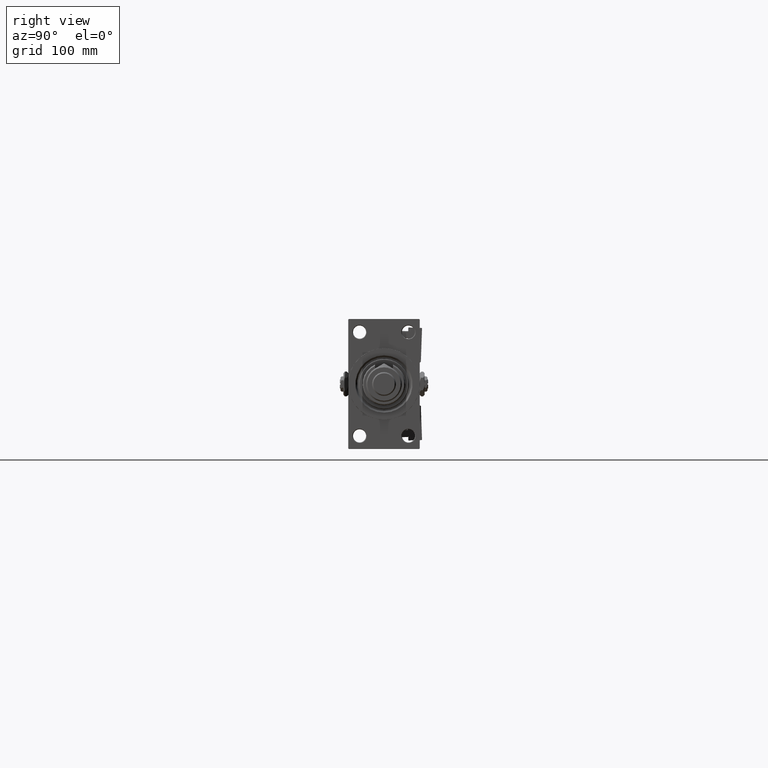
[diagram: clean part render]
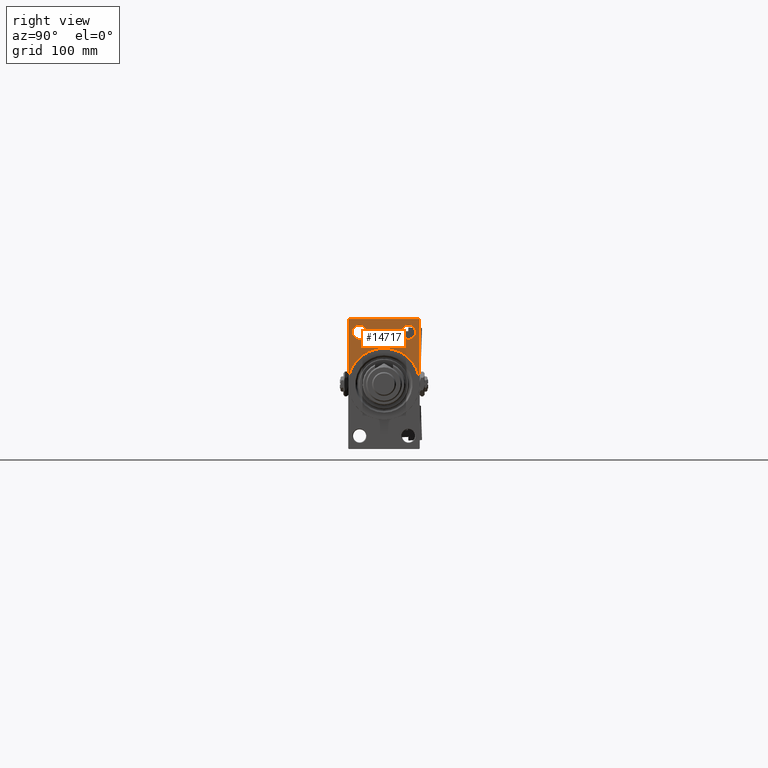
[diagram: same view with one face highlighted and labeled with its STEP entity id]
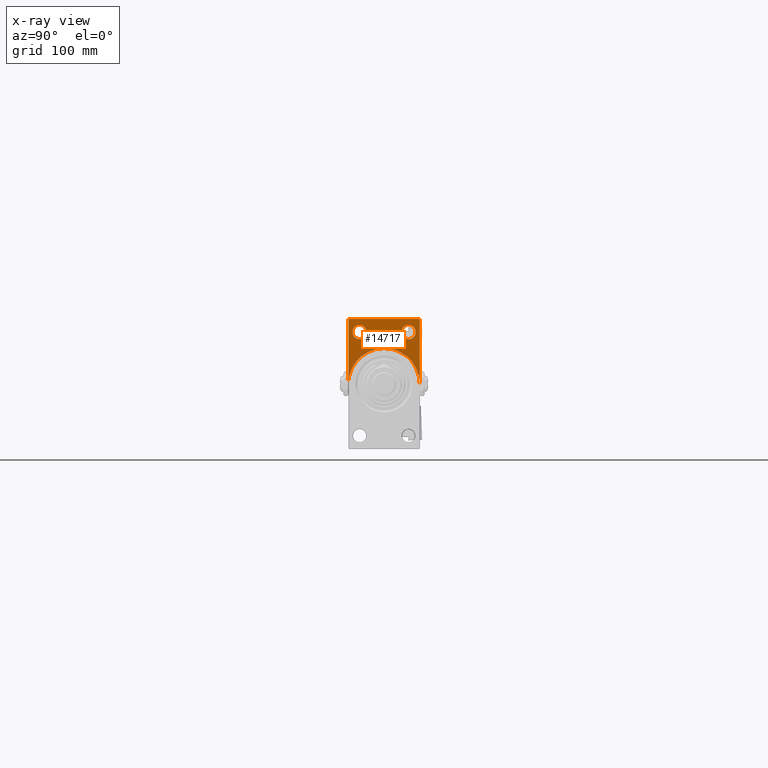
[diagram: x-ray of the same camera — body ghosted, the highlighted face saturated]
A machine part, right view. The second image highlights one B-rep face of the part: STEP entity #14717.
The next image is the same camera in x-ray: the body ghosted, the highlighted face saturated — about 0% of this face is hidden behind the body in this view.
In plain terms, the highlighted planar face has unit normal (-1, 0, 0).
Its self-contained STEP definition (entity closure, byte-faithful):
#389 = AXIS2_PLACEMENT_3D ( 'NONE', #24432, #29851, #24979 ) ;
#594 = DIRECTION ( 'NONE',  ( 0.000000000000000000, 0.000000000000000000, 1.000000000000000000 ) ) ;
#1002 = FACE_OUTER_BOUND ( 'NONE', #41299, .T. ) ;
#5455 = VECTOR ( 'NONE', #39153, 1000.000000000000000 ) ;
#5850 = DIRECTION ( 'NONE',  ( 0.000000000000000000, 0.000000000000000000, 1.000000000000000000 ) ) ;
#6242 = CARTESIAN_POINT ( 'NONE',  ( 468.0000000000000000, -30.00000000000000000, 53.99999999999994316 ) ) ;
#7351 = VERTEX_POINT ( 'NONE', #41472 ) ;
#8142 = CARTESIAN_POINT ( 'NONE',  ( 468.0000000000000000, -30.00000000000000000, 53.99999999999994316 ) ) ;
#8264 = VECTOR ( 'NONE', #20472, 1000.000000000000000 ) ;
#8701 = VERTEX_POINT ( 'NONE', #20101 ) ;
#8966 = AXIS2_PLACEMENT_3D ( 'NONE', #28047, #36265, #16016 ) ;
#11005 = DIRECTION ( 'NONE',  ( 0.000000000000000000, 0.000000000000000000, -1.000000000000000000 ) ) ;
#11716 = CARTESIAN_POINT ( 'NONE',  ( 468.0000000000000000, 29.99999999999999645, 54.49999999999999289 ) ) ;
#12205 = CARTESIAN_POINT ( 'NONE',  ( 468.0000000000000000, 20.50000000000000000, 49.49999999999995026 ) ) ;
#12277 = AXIS2_PLACEMENT_3D ( 'NONE', #31327, #27230, #52388 ) ;
#12663 = ORIENTED_EDGE ( 'NONE', *, *, #34123, .F. ) ;
#12711 = EDGE_CURVE ( 'NONE', #27324, #44124, #17496, .T. ) ;
#13989 = LINE ( 'NONE', #22211, #5455 ) ;
#14304 = ORIENTED_EDGE ( 'NONE', *, *, #49991, .T. ) ;
#14717 = ADVANCED_FACE ( 'NONE', ( #17665, #30778, #1002 ), #21508, .F. ) ;
#14989 = VECTOR ( 'NONE', #38509, 1000.000000000000000 ) ;
#15099 = ORIENTED_EDGE ( 'NONE', *, *, #53710, .T. ) ;
#15787 = VECTOR ( 'NONE', #46765, 1000.000000000000000 ) ;
#16016 = DIRECTION ( 'NONE',  ( 0.000000000000000000, 0.000000000000000000, 1.000000000000000000 ) ) ;
#17050 = LINE ( 'NONE', #42476, #45320 ) ;
#17085 = EDGE_CURVE ( 'NONE', #7351, #8701, #13989, .T. ) ;
#17496 = CIRCLE ( 'NONE', #12277, 30.00000000000000000 ) ;
#17665 = FACE_BOUND ( 'NONE', #46561, .T. ) ;
#18690 = ORIENTED_EDGE ( 'NONE', *, *, #28603, .T. ) ;
#19095 = EDGE_CURVE ( 'NONE', #47041, #27324, #19407, .T. ) ;
#19407 = CIRCLE ( 'NONE', #36870, 30.00000000000000000 ) ;
#20101 = CARTESIAN_POINT ( 'NONE',  ( 468.0000000000000000, 29.50000000000004974, 54.49999999999999289 ) ) ;
#20472 = DIRECTION ( 'NONE',  ( 0.000000000000000000, 0.000000000000000000, -1.000000000000000000 ) ) ;
#21508 = PLANE ( 'NONE',  #33318 ) ;
#22211 = CARTESIAN_POINT ( 'NONE',  ( 468.0000000000000000, 29.50000000000004974, 54.49999999999999289 ) ) ;
#22503 = VERTEX_POINT ( 'NONE', #52675 ) ;
#23091 = VERTEX_POINT ( 'NONE', #8142 ) ;
#23520 = CARTESIAN_POINT ( 'NONE',  ( 468.0000000000000000, 30.00000000000000000, 0.000000000000000000 ) ) ;
#23854 = LINE ( 'NONE', #6242, #14989 ) ;
#24408 = DIRECTION ( 'NONE',  ( 1.000000000000000000, 0.000000000000000000, 0.000000000000000000 ) ) ;
#24432 = CARTESIAN_POINT ( 'NONE',  ( 468.0000000000000000, 20.50000000000000000, 43.50000000000000000 ) ) ;
#24695 = CIRCLE ( 'NONE', #34280, 5.999999999999950262 ) ;
#24979 = DIRECTION ( 'NONE',  ( 0.000000000000000000, 0.000000000000000000, 1.000000000000000000 ) ) ;
#25716 = LINE ( 'NONE', #49618, #15787 ) ;
#25903 = ORIENTED_EDGE ( 'NONE', *, *, #12711, .F. ) ;
#26992 = CARTESIAN_POINT ( 'NONE',  ( 468.0000000000000000, -20.50000000000000000, 49.49999999999995026 ) ) ;
#27088 = VERTEX_POINT ( 'NONE', #26992 ) ;
#27132 = VERTEX_POINT ( 'NONE', #12205 ) ;
#27230 = DIRECTION ( 'NONE',  ( 1.000000000000000000, 0.000000000000000000, 0.000000000000000000 ) ) ;
#27324 = VERTEX_POINT ( 'NONE', #42011 ) ;
#27682 = CARTESIAN_POINT ( 'NONE',  ( 468.0000000000000000, 0.000000000000000000, 0.000000000000000000 ) ) ;
#27883 = EDGE_CURVE ( 'NONE', #29025, #23091, #23854, .T. ) ;
#28047 = CARTESIAN_POINT ( 'NONE',  ( 468.0000000000000000, -20.50000000000000000, 43.50000000000000000 ) ) ;
#28603 = EDGE_CURVE ( 'NONE', #27132, #53208, #36825, .T. ) ;
#29025 = VERTEX_POINT ( 'NONE', #43876 ) ;
#29208 = CARTESIAN_POINT ( 'NONE',  ( 468.0000000000000000, -30.00000000000000000, 0.000000000000000000 ) ) ;
#29851 = DIRECTION ( 'NONE',  ( -1.000000000000000000, 0.000000000000000000, -0.000000000000000000 ) ) ;
#30130 = ORIENTED_EDGE ( 'NONE', *, *, #30445, .T. ) ;
#30232 = DIRECTION ( 'NONE',  ( -0.000000000000000000, 0.000000000000000000, 1.000000000000000000 ) ) ;
#30430 = CARTESIAN_POINT ( 'NONE',  ( 468.0000000000000000, 20.50000000000000000, 43.50000000000000000 ) ) ;
#30445 = EDGE_CURVE ( 'NONE', #22503, #27088, #24695, .T. ) ;
#30778 = FACE_BOUND ( 'NONE', #47903, .T. ) ;
#31327 = CARTESIAN_POINT ( 'NONE',  ( 468.0000000000000000, 0.000000000000000000, 0.000000000000000000 ) ) ;
#32526 = CIRCLE ( 'NONE', #8966, 5.999999999999950262 ) ;
#32596 = EDGE_CURVE ( 'NONE', #53208, #27132, #46647, .T. ) ;
#33316 = LINE ( 'NONE', #11716, #8264 ) ;
#33318 = AXIS2_PLACEMENT_3D ( 'NONE', #34345, #38183, #30232 ) ;
#34123 = EDGE_CURVE ( 'NONE', #7351, #47041, #33316, .T. ) ;
#34280 = AXIS2_PLACEMENT_3D ( 'NONE', #42144, #51158, #594 ) ;
#34345 = CARTESIAN_POINT ( 'NONE',  ( 468.0000000000000000, 0.000000000000000000, 0.000000000000000000 ) ) ;
#36265 = DIRECTION ( 'NONE',  ( -1.000000000000000000, 0.000000000000000000, -0.000000000000000000 ) ) ;
#36825 = CIRCLE ( 'NONE', #44707, 5.999999999999950262 ) ;
#36870 = AXIS2_PLACEMENT_3D ( 'NONE', #27682, #24408, #11005 ) ;
#38183 = DIRECTION ( 'NONE',  ( -1.000000000000000000, 0.000000000000000000, -0.000000000000000000 ) ) ;
#38509 = DIRECTION ( 'NONE',  ( -0.000000000000000000, -0.7071067811865843211, -0.7071067811865107133 ) ) ;
#39153 = DIRECTION ( 'NONE',  ( 0.000000000000000000, -0.7071067811865081598, 0.7071067811865868746 ) ) ;
#39192 = DIRECTION ( 'NONE',  ( -1.000000000000000000, 0.000000000000000000, -0.000000000000000000 ) ) ;
#41299 = EDGE_LOOP ( 'NONE', ( #45993, #53823, #14304, #25903, #52624, #12663, #47859 ) ) ;
#41472 = CARTESIAN_POINT ( 'NONE',  ( 468.0000000000000000, 29.99999999999999645, 53.99999999999999289 ) ) ;
#42011 = CARTESIAN_POINT ( 'NONE',  ( 468.0000000000000000, 0.000000000000000000, 30.00000000000000000 ) ) ;
#42144 = CARTESIAN_POINT ( 'NONE',  ( 468.0000000000000000, -20.50000000000000000, 43.50000000000000000 ) ) ;
#42476 = CARTESIAN_POINT ( 'NONE',  ( 468.0000000000000000, 29.99999999999999645, 54.49999999999999289 ) ) ;
#43876 = CARTESIAN_POINT ( 'NONE',  ( 468.0000000000000000, -29.49999999999988987, 54.50000000000000000 ) ) ;
#44124 = VERTEX_POINT ( 'NONE', #29208 ) ;
#44707 = AXIS2_PLACEMENT_3D ( 'NONE', #30430, #39192, #5850 ) ;
#45320 = VECTOR ( 'NONE', #50682, 1000.000000000000000 ) ;
#45660 = EDGE_CURVE ( 'NONE', #8701, #29025, #17050, .T. ) ;
#45684 = CARTESIAN_POINT ( 'NONE',  ( 468.0000000000000000, 20.50000000000000000, 37.50000000000004974 ) ) ;
#45993 = ORIENTED_EDGE ( 'NONE', *, *, #45660, .T. ) ;
#46561 = EDGE_LOOP ( 'NONE', ( #30130, #15099 ) ) ;
#46647 = CIRCLE ( 'NONE', #389, 5.999999999999950262 ) ;
#46765 = DIRECTION ( 'NONE',  ( 0.000000000000000000, 0.000000000000000000, -1.000000000000000000 ) ) ;
#47041 = VERTEX_POINT ( 'NONE', #23520 ) ;
#47859 = ORIENTED_EDGE ( 'NONE', *, *, #17085, .T. ) ;
#47903 = EDGE_LOOP ( 'NONE', ( #49567, #18690 ) ) ;
#49567 = ORIENTED_EDGE ( 'NONE', *, *, #32596, .T. ) ;
#49618 = CARTESIAN_POINT ( 'NONE',  ( 468.0000000000000000, -30.00000000000000000, 54.50000000000000000 ) ) ;
#49991 = EDGE_CURVE ( 'NONE', #23091, #44124, #25716, .T. ) ;
#50682 = DIRECTION ( 'NONE',  ( 0.000000000000000000, -1.000000000000000000, 1.156482317317871478E-16 ) ) ;
#51158 = DIRECTION ( 'NONE',  ( -1.000000000000000000, 0.000000000000000000, -0.000000000000000000 ) ) ;
#52388 = DIRECTION ( 'NONE',  ( 0.000000000000000000, 0.000000000000000000, -1.000000000000000000 ) ) ;
#52624 = ORIENTED_EDGE ( 'NONE', *, *, #19095, .F. ) ;
#52675 = CARTESIAN_POINT ( 'NONE',  ( 468.0000000000000000, -20.50000000000000000, 37.50000000000004974 ) ) ;
#53208 = VERTEX_POINT ( 'NONE', #45684 ) ;
#53710 = EDGE_CURVE ( 'NONE', #27088, #22503, #32526, .T. ) ;
#53823 = ORIENTED_EDGE ( 'NONE', *, *, #27883, .T. ) ;